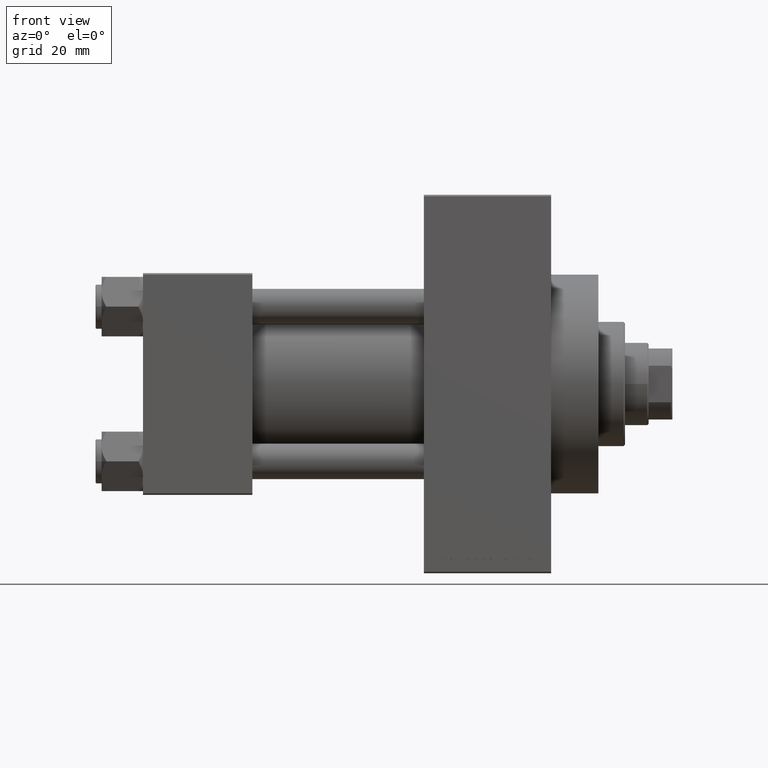
[diagram: clean part render]
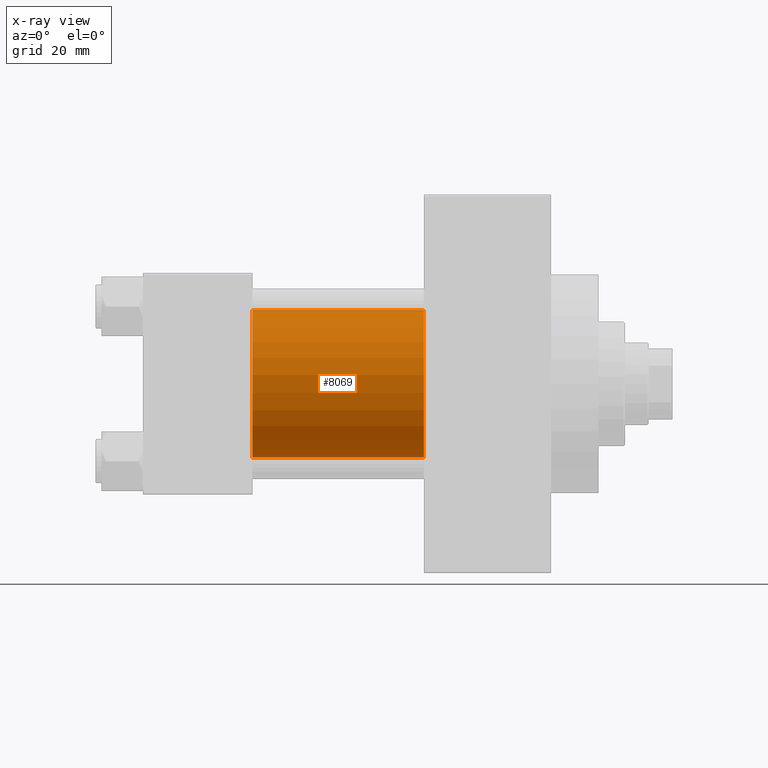
[diagram: x-ray — body ghosted, one internal face saturated and labeled with its STEP entity id]
A machine part, front view, then the same camera in x-ray: the body is ghosted and one INTERNAL B-rep face — a face not visible from any outside direction — is saturated and labeled: STEP entity #8069.
In plain terms, the highlighted cylindrical surface (partial cylindrical patch) has radius 25 mm, axis along (-1, -0, -0).
Its self-contained STEP definition (entity closure, byte-faithful):
#2764 = VECTOR ( 'NONE', #42715, 1000.000000000000000 ) ;
#5935 = EDGE_CURVE ( 'NONE', #9557, #43734, #18073, .T. ) ;
#8069 = ADVANCED_FACE ( 'NONE', ( #31990 ), #24747, .F. ) ;
#8308 = AXIS2_PLACEMENT_3D ( 'NONE', #32299, #19057, #33517 ) ;
#9109 = DIRECTION ( 'NONE',  ( 0.000000000000000000, 0.000000000000000000, 1.000000000000000000 ) ) ;
#9557 = VERTEX_POINT ( 'NONE', #22445 ) ;
#12688 = ORIENTED_EDGE ( 'NONE', *, *, #27696, .T. ) ;
#15083 = DIRECTION ( 'NONE',  ( 0.000000000000000000, 0.000000000000000000, -1.000000000000000000 ) ) ;
#15422 = CARTESIAN_POINT ( 'NONE',  ( 37.00000000000000000, -2.602085213965210642E-15, 25.00000000000000000 ) ) ;
#15570 = EDGE_CURVE ( 'NONE', #9557, #37116, #47988, .T. ) ;
#16302 = EDGE_CURVE ( 'NONE', #43734, #47916, #35337, .T. ) ;
#16769 = AXIS2_PLACEMENT_3D ( 'NONE', #43894, #24259, #9109 ) ;
#18073 = LINE ( 'NONE', #32771, #26344 ) ;
#19057 = DIRECTION ( 'NONE',  ( 1.000000000000000000, 0.000000000000000000, 0.000000000000000000 ) ) ;
#19300 = CARTESIAN_POINT ( 'NONE',  ( 95.00000000000000000, -2.602085213965210642E-15, 0.000000000000000000 ) ) ;
#20946 = CARTESIAN_POINT ( 'NONE',  ( 95.00000000000000000, 4.595317839031718093E-16, -25.00000000000000000 ) ) ;
#22445 = CARTESIAN_POINT ( 'NONE',  ( 95.00000000000000000, -2.602085213965210642E-15, 25.00000000000000000 ) ) ;
#24259 = DIRECTION ( 'NONE',  ( -1.000000000000000000, -0.000000000000000000, -0.000000000000000000 ) ) ;
#24747 = CYLINDRICAL_SURFACE ( 'NONE', #16769, 25.00000000000000000 ) ;
#26344 = VECTOR ( 'NONE', #47922, 1000.000000000000000 ) ;
#26539 = AXIS2_PLACEMENT_3D ( 'NONE', #19300, #49148, #15083 ) ;
#27696 = EDGE_CURVE ( 'NONE', #37116, #47916, #35758, .T. ) ;
#30644 = CARTESIAN_POINT ( 'NONE',  ( 37.00000000000000000, 4.595317839031718093E-16, -25.00000000000000000 ) ) ;
#31276 = CARTESIAN_POINT ( 'NONE',  ( 95.00000000000000000, 4.595317839031718093E-16, -25.00000000000000000 ) ) ;
#31990 = FACE_OUTER_BOUND ( 'NONE', #42488, .T. ) ;
#32299 = CARTESIAN_POINT ( 'NONE',  ( 37.00000000000000000, -2.602085213965210642E-15, 0.000000000000000000 ) ) ;
#32771 = CARTESIAN_POINT ( 'NONE',  ( 95.00000000000000000, -2.602085213965210642E-15, 25.00000000000000000 ) ) ;
#33517 = DIRECTION ( 'NONE',  ( 0.000000000000000000, 0.000000000000000000, -1.000000000000000000 ) ) ;
#35337 = CIRCLE ( 'NONE', #8308, 25.00000000000000000 ) ;
#35758 = LINE ( 'NONE', #31276, #2764 ) ;
#36780 = ORIENTED_EDGE ( 'NONE', *, *, #5935, .F. ) ;
#37116 = VERTEX_POINT ( 'NONE', #20946 ) ;
#42488 = EDGE_LOOP ( 'NONE', ( #43053, #12688, #44223, #36780 ) ) ;
#42715 = DIRECTION ( 'NONE',  ( -1.000000000000000000, -0.000000000000000000, -0.000000000000000000 ) ) ;
#43053 = ORIENTED_EDGE ( 'NONE', *, *, #15570, .T. ) ;
#43734 = VERTEX_POINT ( 'NONE', #15422 ) ;
#43894 = CARTESIAN_POINT ( 'NONE',  ( 95.00000000000000000, -2.602085213965210642E-15, 0.000000000000000000 ) ) ;
#44223 = ORIENTED_EDGE ( 'NONE', *, *, #16302, .F. ) ;
#47916 = VERTEX_POINT ( 'NONE', #30644 ) ;
#47922 = DIRECTION ( 'NONE',  ( -1.000000000000000000, -0.000000000000000000, -0.000000000000000000 ) ) ;
#47988 = CIRCLE ( 'NONE', #26539, 25.00000000000000000 ) ;
#49148 = DIRECTION ( 'NONE',  ( 1.000000000000000000, 0.000000000000000000, 0.000000000000000000 ) ) ;